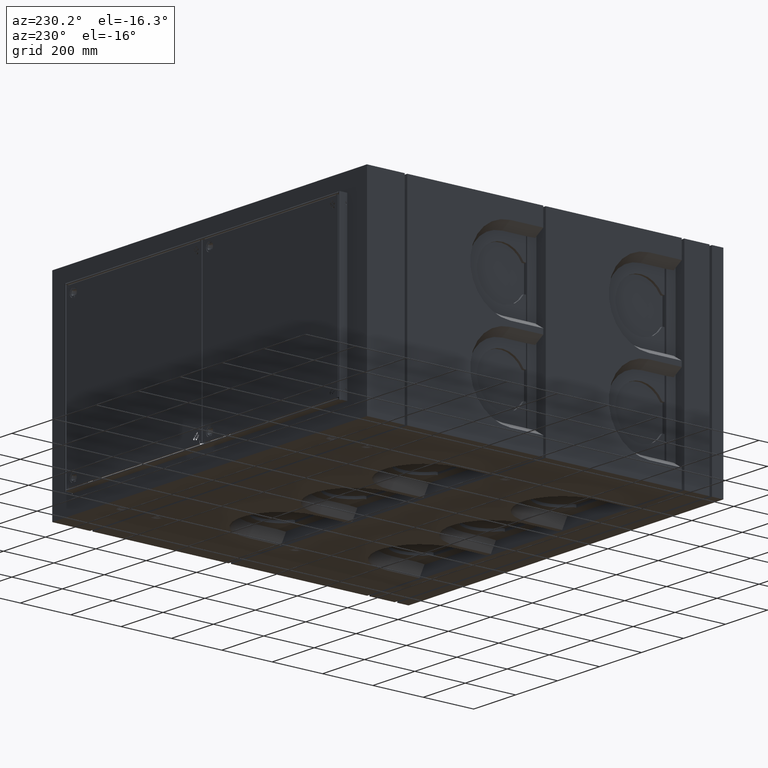
[diagram: clean part render]
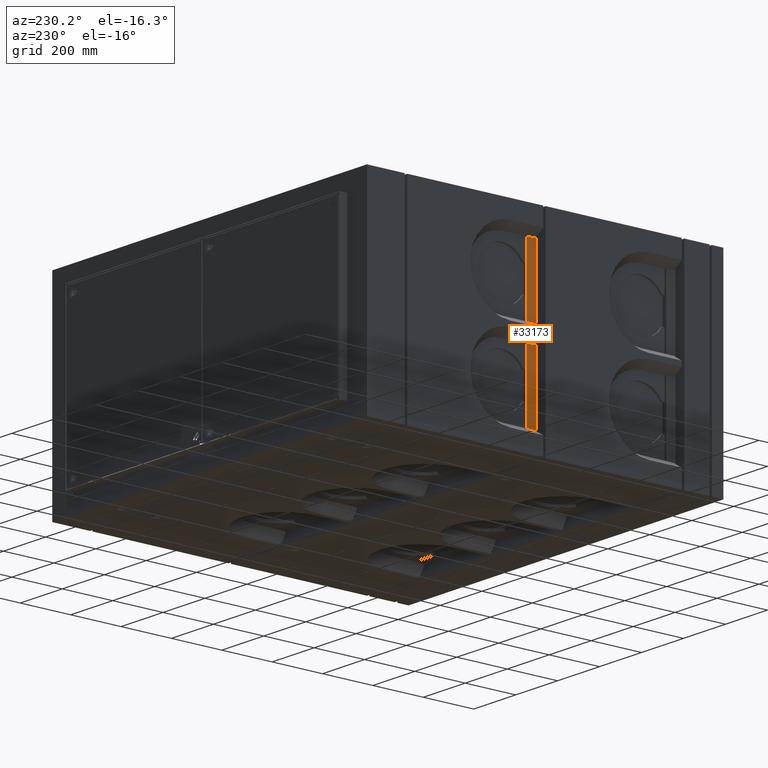
[diagram: same view with one face highlighted and labeled with its STEP entity id]
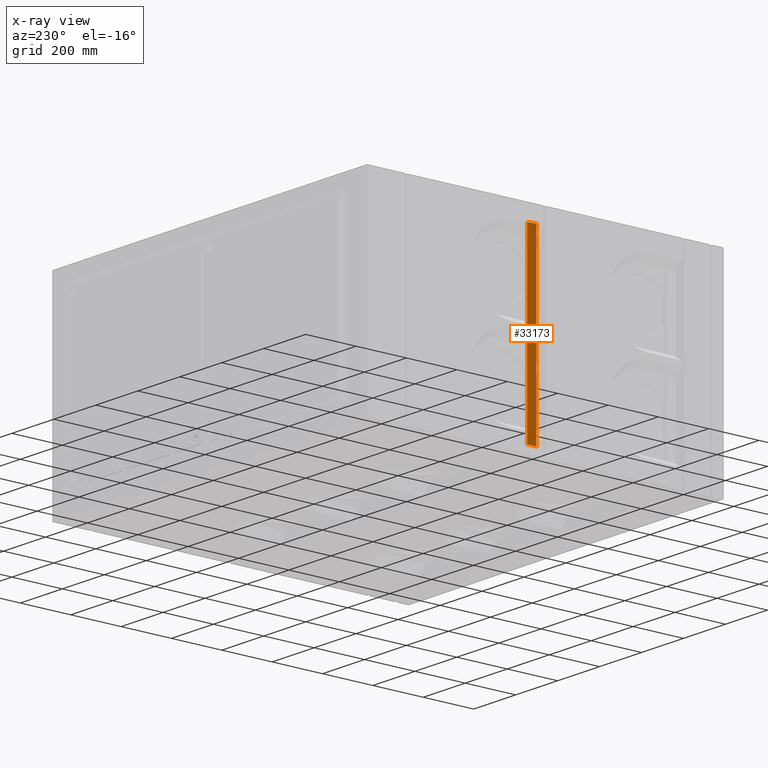
[diagram: x-ray of the same camera — body ghosted, the highlighted face saturated]
A machine part, auxiliary view. The second image highlights one B-rep face of the part: STEP entity #33173.
The next image is the same camera in x-ray: the body ghosted, the highlighted face saturated — about 0% of this face is hidden behind the body in this view.
In plain terms, the highlighted planar face has unit normal (0.9984, -0.057, -0).
Its self-contained STEP definition (entity closure, byte-faithful):
#1045 = EDGE_CURVE ( 'NONE', #22279, #21724, #28848, .T. ) ;
#1330 = EDGE_CURVE ( 'NONE', #21724, #27939, #4275, .T. ) ;
#2675 = LINE ( 'NONE', #19191, #32327 ) ;
#2715 = CARTESIAN_POINT ( 'NONE',  ( -704.9999999999997726, 704.9999999999992042, 355.0000000000001705 ) ) ;
#4275 = LINE ( 'NONE', #7357, #33481 ) ;
#7357 = CARTESIAN_POINT ( 'NONE',  ( -704.9999999999998863, 704.9999999999994316, -354.9999999999997158 ) ) ;
#7762 = DIRECTION ( 'NONE',  ( 0.9983713344239770748, -0.05704979053850664505, -3.658428751330033609E-17 ) ) ;
#11320 = CARTESIAN_POINT ( 'NONE',  ( -703.0000000000000000, 739.9999999999990905, 353.0000000000002842 ) ) ;
#11743 = EDGE_CURVE ( 'NONE', #27939, #30885, #21517, .T. ) ;
#13500 = DIRECTION ( 'NONE',  ( 0.05704979053850663812, 0.9983713344239769638, 4.983248396537079067E-16 ) ) ;
#13796 = AXIS2_PLACEMENT_3D ( 'NONE', #31454, #7762, #13500 ) ;
#14105 = CARTESIAN_POINT ( 'NONE',  ( -703.1757527270153787, 736.9243272772288265, 353.1757527270156629 ) ) ;
#15389 = EDGE_LOOP ( 'NONE', ( #31578, #22121, #24987, #37750 ) ) ;
#17512 = DIRECTION ( 'NONE',  ( -0.05695717718111109606, -0.9967506006695546761, -0.05695717718111731331 ) ) ;
#19190 = VECTOR ( 'NONE', #22983, 1000.000000000000114 ) ;
#19191 = CARTESIAN_POINT ( 'NONE',  ( -703.0000000000000000, 739.9999999999990905, 407.1757781025118561 ) ) ;
#20340 = CARTESIAN_POINT ( 'NONE',  ( -700.5338985300812737, 783.1567757235803811, -350.5338985300808190 ) ) ;
#21517 = LINE ( 'NONE', #14105, #19190 ) ;
#21724 = VERTEX_POINT ( 'NONE', #36051 ) ;
#22046 = DIRECTION ( 'NONE',  ( -8.095376221225034036E-18, 4.996003610813208376E-16, -1.000000000000000000 ) ) ;
#22121 = ORIENTED_EDGE ( 'NONE', *, *, #1045, .T. ) ;
#22279 = VERTEX_POINT ( 'NONE', #38045 ) ;
#22983 = DIRECTION ( 'NONE',  ( 0.05695717718111109606, 0.9967506006695546761, -0.05695717718111707739 ) ) ;
#24987 = ORIENTED_EDGE ( 'NONE', *, *, #1330, .T. ) ;
#25534 = VECTOR ( 'NONE', #17512, 1000.000000000000114 ) ;
#27939 = VERTEX_POINT ( 'NONE', #2715 ) ;
#28556 = DIRECTION ( 'NONE',  ( -1.145080378978124786E-17, -4.996003610813208376E-16, 1.000000000000000000 ) ) ;
#28848 = LINE ( 'NONE', #20340, #25534 ) ;
#30885 = VERTEX_POINT ( 'NONE', #11320 ) ;
#31454 = CARTESIAN_POINT ( 'NONE',  ( -703.0000000000000000, 739.9999999999990905, 407.1757781025118561 ) ) ;
#31578 = ORIENTED_EDGE ( 'NONE', *, *, #38516, .T. ) ;
#32327 = VECTOR ( 'NONE', #22046, 1000.000000000000000 ) ;
#33173 = ADVANCED_FACE ( 'NONE', ( #33992 ), #34541, .F. ) ;
#33481 = VECTOR ( 'NONE', #28556, 1000.000000000000000 ) ;
#33992 = FACE_OUTER_BOUND ( 'NONE', #15389, .T. ) ;
#34541 = PLANE ( 'NONE',  #13796 ) ;
#36051 = CARTESIAN_POINT ( 'NONE',  ( -704.9999999999997726, 704.9999999999994316, -354.9999999999997158 ) ) ;
#37750 = ORIENTED_EDGE ( 'NONE', *, *, #11743, .T. ) ;
#38045 = CARTESIAN_POINT ( 'NONE',  ( -703.0000000000000000, 739.9999999999996589, -352.9999999999997726 ) ) ;
#38516 = EDGE_CURVE ( 'NONE', #30885, #22279, #2675, .T. ) ;